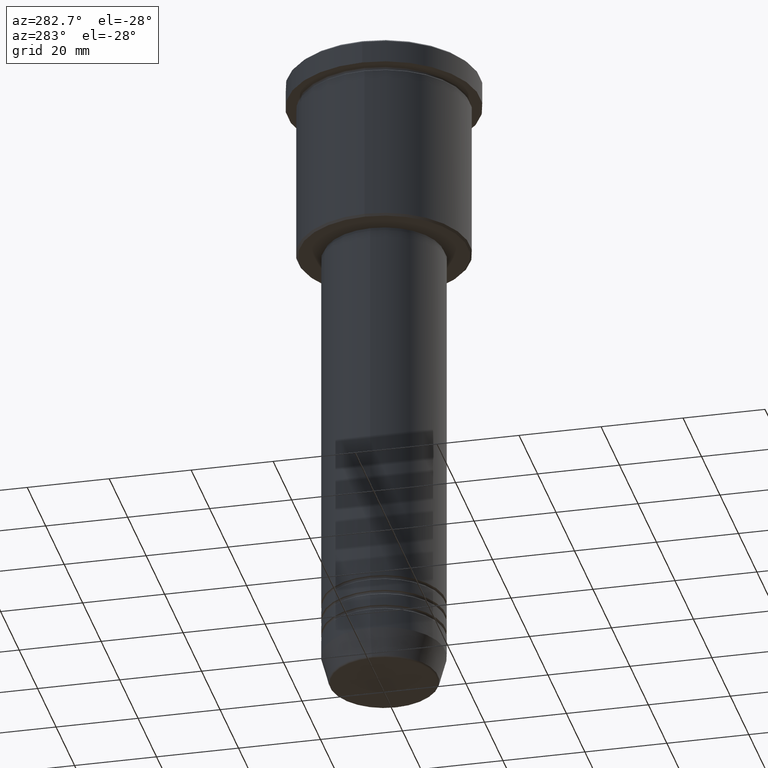
[diagram: clean part render]
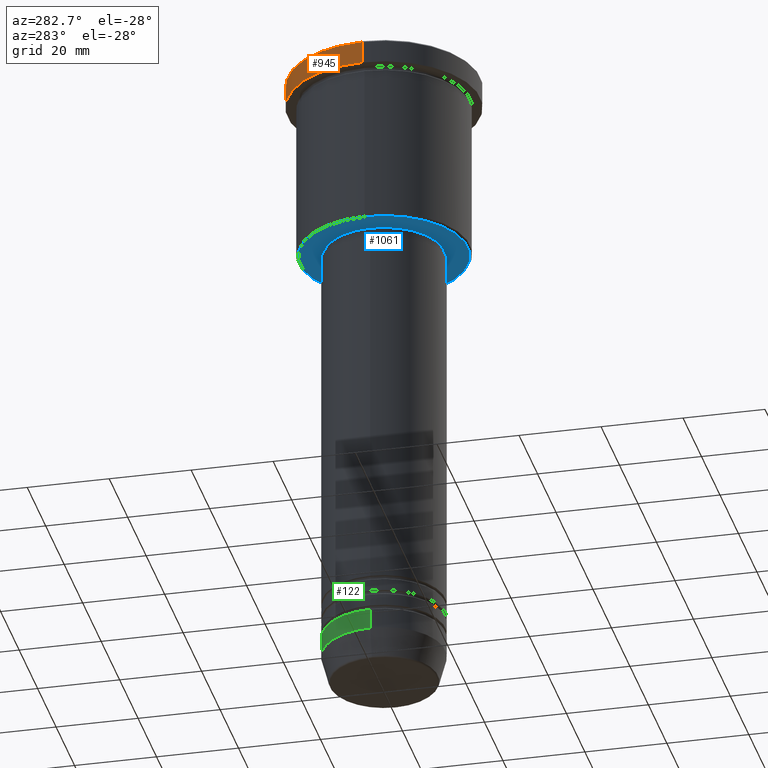
[diagram: same view with three faces highlighted in distinct colors, each labeled with its STEP entity id]
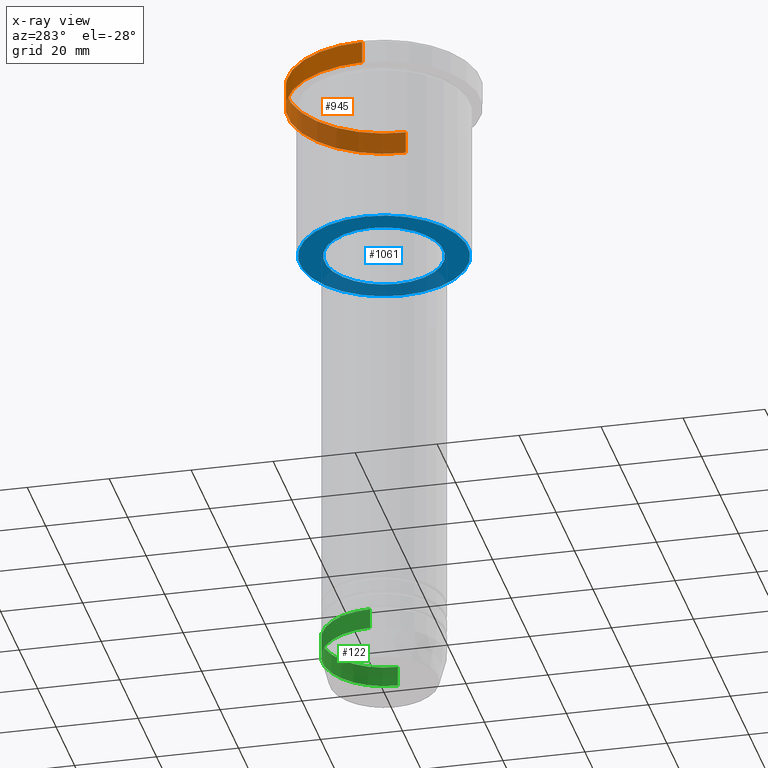
[diagram: x-ray of the same camera — body ghosted, the three highlighted faces saturated]
A machine part, auxiliary view with three faces highlighted in distinct colors.
The next image is the same camera in x-ray (body ghosted, the three faces saturated) — at least one of them is partly hidden behind the body in this view.
Their STEP definitions:

[orange] entity #945 — the highlighted cylindrical surface (partial cylindrical patch) has radius 23.5 mm, axis along (-0, -0, 1).
#43 = LINE ( 'NONE', #601, #955 ) ;
#47 = DIRECTION ( 'NONE',  ( 1.000000000000000000, 0.000000000000000000, 0.000000000000000000 ) ) ;
#82 = DIRECTION ( 'NONE',  ( -0.000000000000000000, -0.000000000000000000, 1.000000000000000000 ) ) ;
#101 = VERTEX_POINT ( 'NONE', #673 ) ;
#176 = CARTESIAN_POINT ( 'NONE',  ( 0.000000000000000000, 0.000000000000000000, 0.000000000000000000 ) ) ;
#217 = VERTEX_POINT ( 'NONE', #1009 ) ;
#261 = VERTEX_POINT ( 'NONE', #555 ) ;
#329 = EDGE_CURVE ( 'NONE', #101, #842, #573, .T. ) ;
#342 = DIRECTION ( 'NONE',  ( 0.000000000000000000, 0.000000000000000000, -1.000000000000000000 ) ) ;
#376 = EDGE_CURVE ( 'NONE', #261, #217, #43, .T. ) ;
#408 = CARTESIAN_POINT ( 'NONE',  ( -23.50000000000000000, 2.877919977996280320E-15, -0.5000000000000004441 ) ) ;
#425 = CARTESIAN_POINT ( 'NONE',  ( 0.000000000000000000, 0.000000000000000000, -0.5000000000000004441 ) ) ;
#472 = ORIENTED_EDGE ( 'NONE', *, *, #1171, .T. ) ;
#547 = DIRECTION ( 'NONE',  ( -0.000000000000000000, -0.000000000000000000, 1.000000000000000000 ) ) ;
#555 = CARTESIAN_POINT ( 'NONE',  ( 23.50000000000000000, 0.000000000000000000, -5.999999999999993783 ) ) ;
#565 = DIRECTION ( 'NONE',  ( 1.000000000000000000, 0.000000000000000000, 0.000000000000000000 ) ) ;
#573 = LINE ( 'NONE', #849, #995 ) ;
#586 = DIRECTION ( 'NONE',  ( -0.000000000000000000, -0.000000000000000000, 1.000000000000000000 ) ) ;
#601 = CARTESIAN_POINT ( 'NONE',  ( 23.50000000000000000, 0.000000000000000000, 0.000000000000000000 ) ) ;
#630 = AXIS2_PLACEMENT_3D ( 'NONE', #425, #342, #47 ) ;
#655 = CARTESIAN_POINT ( 'NONE',  ( 0.000000000000000000, 0.000000000000000000, -5.999999999999993783 ) ) ;
#673 = CARTESIAN_POINT ( 'NONE',  ( -23.50000000000000000, 2.877919977996280320E-15, -5.999999999999993783 ) ) ;
#724 = CIRCLE ( 'NONE', #759, 23.50000000000000000 ) ;
#747 = EDGE_LOOP ( 'NONE', ( #926, #904, #472, #1010 ) ) ;
#759 = AXIS2_PLACEMENT_3D ( 'NONE', #655, #82, #565 ) ;
#796 = AXIS2_PLACEMENT_3D ( 'NONE', #176, #547, #918 ) ;
#809 = DIRECTION ( 'NONE',  ( -0.000000000000000000, -0.000000000000000000, 1.000000000000000000 ) ) ;
#818 = FACE_OUTER_BOUND ( 'NONE', #747, .T. ) ;
#842 = VERTEX_POINT ( 'NONE', #408 ) ;
#849 = CARTESIAN_POINT ( 'NONE',  ( -23.50000000000000000, 2.877919977996280320E-15, 0.000000000000000000 ) ) ;
#904 = ORIENTED_EDGE ( 'NONE', *, *, #329, .T. ) ;
#905 = EDGE_CURVE ( 'NONE', #261, #101, #724, .T. ) ;
#918 = DIRECTION ( 'NONE',  ( 1.000000000000000000, 0.000000000000000000, 0.000000000000000000 ) ) ;
#926 = ORIENTED_EDGE ( 'NONE', *, *, #905, .T. ) ;
#945 = ADVANCED_FACE ( 'NONE', ( #818 ), #1103, .T. ) ;
#955 = VECTOR ( 'NONE', #586, 1000.000000000000000 ) ;
#995 = VECTOR ( 'NONE', #809, 1000.000000000000000 ) ;
#1009 = CARTESIAN_POINT ( 'NONE',  ( 23.50000000000000000, 0.000000000000000000, -0.5000000000000004441 ) ) ;
#1010 = ORIENTED_EDGE ( 'NONE', *, *, #376, .F. ) ;
#1103 = CYLINDRICAL_SURFACE ( 'NONE', #796, 23.50000000000000000 ) ;
#1123 = CIRCLE ( 'NONE', #630, 23.50000000000000000 ) ;
#1171 = EDGE_CURVE ( 'NONE', #842, #217, #1123, .T. ) ;

[blue] entity #1061 — the highlighted planar face has unit normal (0, 0, -1).
#22 = EDGE_LOOP ( 'NONE', ( #1039, #662 ) ) ;
#25 = DIRECTION ( 'NONE',  ( -0.000000000000000000, -0.000000000000000000, 1.000000000000000000 ) ) ;
#62 = FACE_BOUND ( 'NONE', #22, .T. ) ;
#73 = DIRECTION ( 'NONE',  ( 0.000000000000000000, 0.000000000000000000, -1.000000000000000000 ) ) ;
#85 = EDGE_CURVE ( 'NONE', #803, #652, #203, .T. ) ;
#124 = CIRCLE ( 'NONE', #238, 14.49999999999999822 ) ;
#130 = CARTESIAN_POINT ( 'NONE',  ( 0.000000000000000000, 0.000000000000000000, -46.00000000000001421 ) ) ;
#143 = AXIS2_PLACEMENT_3D ( 'NONE', #130, #491, #1130 ) ;
#157 = FACE_OUTER_BOUND ( 'NONE', #1106, .T. ) ;
#163 = AXIS2_PLACEMENT_3D ( 'NONE', #298, #25, #495 ) ;
#177 = VERTEX_POINT ( 'NONE', #699 ) ;
#203 = CIRCLE ( 'NONE', #163, 14.49999999999999822 ) ;
#224 = ORIENTED_EDGE ( 'NONE', *, *, #1084, .T. ) ;
#238 = AXIS2_PLACEMENT_3D ( 'NONE', #1151, #439, #246 ) ;
#246 = DIRECTION ( 'NONE',  ( 1.000000000000000000, 0.000000000000000000, 0.000000000000000000 ) ) ;
#298 = CARTESIAN_POINT ( 'NONE',  ( 0.000000000000000000, 0.000000000000000000, -46.00000000000000711 ) ) ;
#354 = CARTESIAN_POINT ( 'NONE',  ( -20.49999999999998934, 2.541142108230757480E-15, -46.00000000000001421 ) ) ;
#397 = CIRCLE ( 'NONE', #143, 20.49999999999998934 ) ;
#429 = PLANE ( 'NONE',  #938 ) ;
#433 = DIRECTION ( 'NONE',  ( 0.000000000000000000, 0.000000000000000000, -1.000000000000000000 ) ) ;
#439 = DIRECTION ( 'NONE',  ( -0.000000000000000000, -0.000000000000000000, 1.000000000000000000 ) ) ;
#460 = EDGE_CURVE ( 'NONE', #177, #554, #397, .T. ) ;
#491 = DIRECTION ( 'NONE',  ( 0.000000000000000000, 0.000000000000000000, -1.000000000000000000 ) ) ;
#495 = DIRECTION ( 'NONE',  ( 1.000000000000000000, 0.000000000000000000, 0.000000000000000000 ) ) ;
#522 = CARTESIAN_POINT ( 'NONE',  ( 0.000000000000000000, 21.00000000000000000, -46.00000000000001421 ) ) ;
#544 = EDGE_CURVE ( 'NONE', #652, #803, #124, .T. ) ;
#554 = VERTEX_POINT ( 'NONE', #354 ) ;
#568 = CIRCLE ( 'NONE', #666, 20.49999999999998934 ) ;
#594 = CARTESIAN_POINT ( 'NONE',  ( 14.49999999999999822, 0.000000000000000000, -46.00000000000000711 ) ) ;
#618 = CARTESIAN_POINT ( 'NONE',  ( 0.000000000000000000, 0.000000000000000000, -46.00000000000001421 ) ) ;
#652 = VERTEX_POINT ( 'NONE', #984 ) ;
#653 = ORIENTED_EDGE ( 'NONE', *, *, #460, .T. ) ;
#662 = ORIENTED_EDGE ( 'NONE', *, *, #544, .T. ) ;
#666 = AXIS2_PLACEMENT_3D ( 'NONE', #618, #433, #988 ) ;
#699 = CARTESIAN_POINT ( 'NONE',  ( 20.49999999999998934, 0.000000000000000000, -46.00000000000001421 ) ) ;
#803 = VERTEX_POINT ( 'NONE', #594 ) ;
#938 = AXIS2_PLACEMENT_3D ( 'NONE', #522, #73, #1081 ) ;
#984 = CARTESIAN_POINT ( 'NONE',  ( -14.49999999999999822, 1.775737858763662015E-15, -46.00000000000000711 ) ) ;
#988 = DIRECTION ( 'NONE',  ( -1.000000000000000000, 0.000000000000000000, 0.000000000000000000 ) ) ;
#1039 = ORIENTED_EDGE ( 'NONE', *, *, #85, .T. ) ;
#1061 = ADVANCED_FACE ( 'NONE', ( #157, #62 ), #429, .T. ) ;
#1081 = DIRECTION ( 'NONE',  ( -1.000000000000000000, 0.000000000000000000, -0.000000000000000000 ) ) ;
#1084 = EDGE_CURVE ( 'NONE', #554, #177, #568, .T. ) ;
#1106 = EDGE_LOOP ( 'NONE', ( #653, #224 ) ) ;
#1130 = DIRECTION ( 'NONE',  ( -1.000000000000000000, 0.000000000000000000, 0.000000000000000000 ) ) ;
#1151 = CARTESIAN_POINT ( 'NONE',  ( 0.000000000000000000, 0.000000000000000000, -46.00000000000000711 ) ) ;

[green] entity #122 — the highlighted cylindrical surface (partial cylindrical patch) has radius 15 mm, axis along (-0, -0, 1).
#38 = EDGE_CURVE ( 'NONE', #211, #1024, #980, .T. ) ;
#41 = DIRECTION ( 'NONE',  ( -0.000000000000000000, -0.000000000000000000, 1.000000000000000000 ) ) ;
#56 = CARTESIAN_POINT ( 'NONE',  ( 0.000000000000000000, 0.000000000000000000, 0.000000000000000000 ) ) ;
#58 = CARTESIAN_POINT ( 'NONE',  ( 0.000000000000000000, 0.000000000000000000, -154.0000000000000284 ) ) ;
#105 = EDGE_LOOP ( 'NONE', ( #1030, #432, #490, #1138 ) ) ;
#122 = ADVANCED_FACE ( 'NONE', ( #521 ), #316, .T. ) ;
#166 = EDGE_CURVE ( 'NONE', #1024, #1114, #1064, .T. ) ;
#211 = VERTEX_POINT ( 'NONE', #440 ) ;
#243 = CARTESIAN_POINT ( 'NONE',  ( -15.00000000000000000, 1.836970198721029589E-15, 0.000000000000000000 ) ) ;
#309 = CARTESIAN_POINT ( 'NONE',  ( -15.00000000000000000, 1.836970198721029589E-15, -154.0000000000000284 ) ) ;
#316 = CYLINDRICAL_SURFACE ( 'NONE', #792, 15.00000000000000000 ) ;
#386 = VERTEX_POINT ( 'NONE', #404 ) ;
#404 = CARTESIAN_POINT ( 'NONE',  ( 15.00000000000000000, 0.000000000000000000, -149.0000000000000284 ) ) ;
#418 = CIRCLE ( 'NONE', #494, 15.00000000000000000 ) ;
#420 = VECTOR ( 'NONE', #617, 1000.000000000000000 ) ;
#432 = ORIENTED_EDGE ( 'NONE', *, *, #166, .T. ) ;
#440 = CARTESIAN_POINT ( 'NONE',  ( 15.00000000000000000, 0.000000000000000000, -154.0000000000000284 ) ) ;
#489 = DIRECTION ( 'NONE',  ( 1.000000000000000000, 0.000000000000000000, 0.000000000000000000 ) ) ;
#490 = ORIENTED_EDGE ( 'NONE', *, *, #825, .F. ) ;
#494 = AXIS2_PLACEMENT_3D ( 'NONE', #675, #503, #489 ) ;
#499 = CARTESIAN_POINT ( 'NONE',  ( 15.00000000000000000, 0.000000000000000000, 0.000000000000000000 ) ) ;
#503 = DIRECTION ( 'NONE',  ( -0.000000000000000000, -0.000000000000000000, 1.000000000000000000 ) ) ;
#521 = FACE_OUTER_BOUND ( 'NONE', #105, .T. ) ;
#617 = DIRECTION ( 'NONE',  ( -0.000000000000000000, -0.000000000000000000, 1.000000000000000000 ) ) ;
#675 = CARTESIAN_POINT ( 'NONE',  ( 0.000000000000000000, 0.000000000000000000, -149.0000000000000284 ) ) ;
#709 = CARTESIAN_POINT ( 'NONE',  ( -15.00000000000000000, 1.836970198721029589E-15, -149.0000000000000284 ) ) ;
#792 = AXIS2_PLACEMENT_3D ( 'NONE', #56, #987, #1162 ) ;
#825 = EDGE_CURVE ( 'NONE', #386, #1114, #418, .T. ) ;
#834 = EDGE_CURVE ( 'NONE', #211, #386, #1044, .T. ) ;
#859 = AXIS2_PLACEMENT_3D ( 'NONE', #58, #890, #929 ) ;
#890 = DIRECTION ( 'NONE',  ( -0.000000000000000000, -0.000000000000000000, 1.000000000000000000 ) ) ;
#929 = DIRECTION ( 'NONE',  ( 1.000000000000000000, 0.000000000000000000, 0.000000000000000000 ) ) ;
#980 = CIRCLE ( 'NONE', #859, 15.00000000000000000 ) ;
#987 = DIRECTION ( 'NONE',  ( -0.000000000000000000, -0.000000000000000000, 1.000000000000000000 ) ) ;
#1016 = VECTOR ( 'NONE', #41, 1000.000000000000000 ) ;
#1024 = VERTEX_POINT ( 'NONE', #309 ) ;
#1030 = ORIENTED_EDGE ( 'NONE', *, *, #38, .T. ) ;
#1044 = LINE ( 'NONE', #499, #1016 ) ;
#1064 = LINE ( 'NONE', #243, #420 ) ;
#1114 = VERTEX_POINT ( 'NONE', #709 ) ;
#1138 = ORIENTED_EDGE ( 'NONE', *, *, #834, .F. ) ;
#1162 = DIRECTION ( 'NONE',  ( 1.000000000000000000, 0.000000000000000000, 0.000000000000000000 ) ) ;